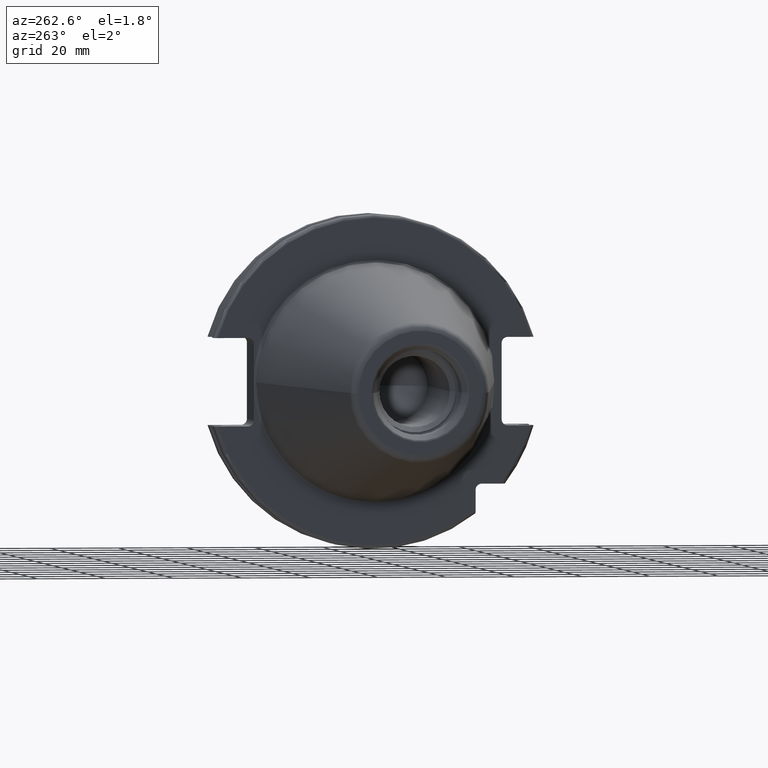
[diagram: clean part render]
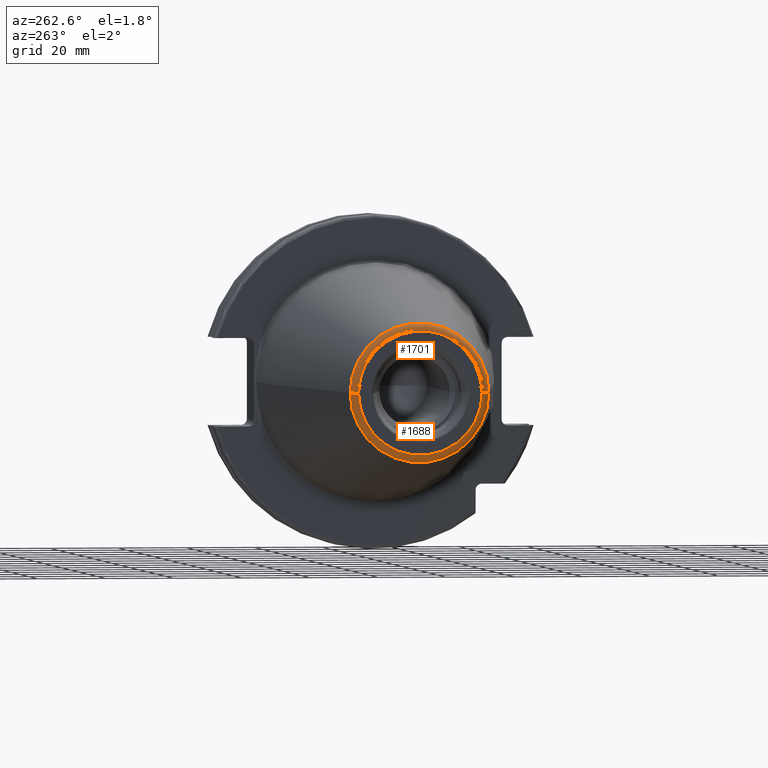
[diagram: same view with one multi-face feature highlighted, each face labeled with its STEP entity id]
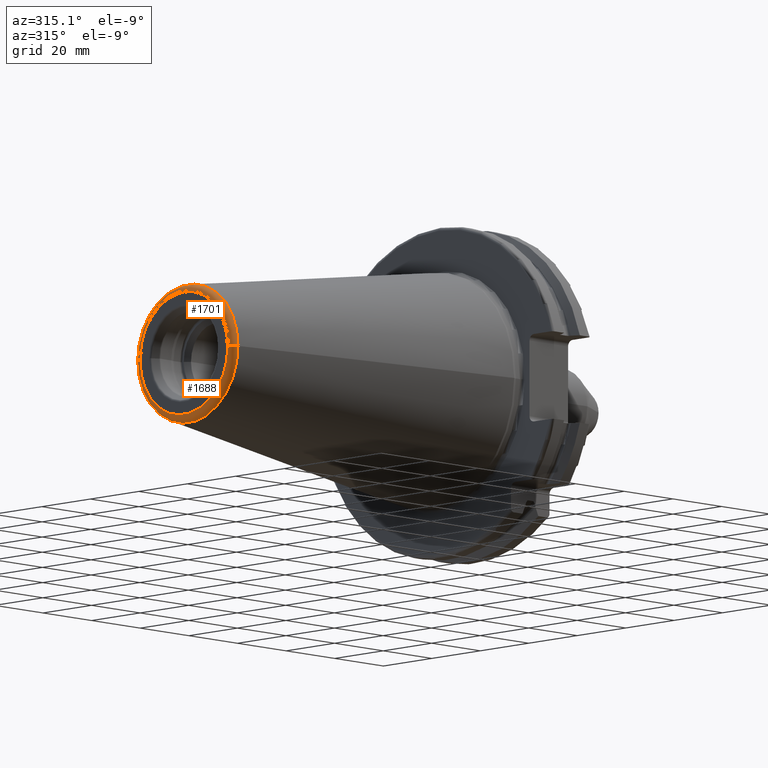
[diagram: same view with one multi-face feature highlighted, each face labeled with its STEP entity id]
A machine part, auxiliary view. The highlighted faces form ONE feature: a constant-radius fillet chain: 2 tangent blend faces with common blend radius 2.25 mm. The faces share edges in the B-rep.
A second angle (auxiliary view) of the same feature is appended — it is thin or edge-on in the first view.
Their STEP definitions:
[1] entity #1688 (Torus):
#2=CARTESIAN_POINT('',(-1.016E2,0.E0,0.E0));
#3=DIRECTION('',(-1.E0,0.E0,0.E0));
#4=DIRECTION('',(0.E0,1.E0,0.E0));
#5=AXIS2_PLACEMENT_3D('',#2,#3,#4);
#22=CARTESIAN_POINT('',(-9.935E1,1.816144700117E1,0.E0));
#23=DIRECTION('',(0.E0,0.E0,1.E0));
#24=DIRECTION('',(-1.443186691705E-1,9.895312636440E-1,0.E0));
#25=AXIS2_PLACEMENT_3D('',#22,#23,#24);
#27=CARTESIAN_POINT('',(-9.935E1,-1.816144700117E1,0.E0));
#28=DIRECTION('',(0.E0,0.E0,-1.E0));
#29=DIRECTION('',(-1.443186691705E-1,-9.895312636440E-1,0.E0));
#30=AXIS2_PLACEMENT_3D('',#27,#28,#29);
#32=CARTESIAN_POINT('',(-9.967471700563E1,0.E0,0.E0));
#33=DIRECTION('',(-1.E0,0.E0,0.E0));
#34=DIRECTION('',(0.E0,1.E0,0.E0));
#35=AXIS2_PLACEMENT_3D('',#32,#33,#34);
#1384=CARTESIAN_POINT('',(-9.967471700563E1,2.038789234437E1,0.E0));
#1385=CARTESIAN_POINT('',(-1.016E2,1.816144700117E1,0.E0));
#1386=VERTEX_POINT('',#1384);
#1387=VERTEX_POINT('',#1385);
#1388=CARTESIAN_POINT('',(-9.967471700563E1,-2.038789234437E1,0.E0));
#1389=CARTESIAN_POINT('',(-1.016E2,-1.816144700117E1,0.E0));
#1390=VERTEX_POINT('',#1388);
#1391=VERTEX_POINT('',#1389);
#1674=CARTESIAN_POINT('',(-9.935E1,0.E0,0.E0));
#1675=DIRECTION('',(1.E0,0.E0,0.E0));
#1676=DIRECTION('',(0.E0,-1.E0,0.E0));
#1677=AXIS2_PLACEMENT_3D('',#1674,#1675,#1676);
#1678=TOROIDAL_SURFACE('',#1677,1.816144700117E1,2.25E0);
#1680=ORIENTED_EDGE('',*,*,#1679,.T.);
#1681=ORIENTED_EDGE('',*,*,#1661,.T.);
#1683=ORIENTED_EDGE('',*,*,#1682,.F.);
#1685=ORIENTED_EDGE('',*,*,#1684,.F.);
#1686=EDGE_LOOP('',(#1680,#1681,#1683,#1685));
#1687=FACE_OUTER_BOUND('',#1686,.F.);
#1688=ADVANCED_FACE('',(#1687),#1678,.T.);
#6=CIRCLE('',#5,1.816144700117E1);
#26=CIRCLE('',#25,2.25E0);
#31=CIRCLE('',#30,2.25E0);
#36=CIRCLE('',#35,2.038789234437E1);
#1661=EDGE_CURVE('',#1387,#1391,#6,.T.);
#1679=EDGE_CURVE('',#1386,#1387,#26,.T.);
#1682=EDGE_CURVE('',#1390,#1391,#31,.T.);
#1684=EDGE_CURVE('',#1386,#1390,#36,.T.);
[2] entity #1701 (Torus):
#7=CARTESIAN_POINT('',(-1.016E2,0.E0,0.E0));
#8=DIRECTION('',(1.E0,0.E0,0.E0));
#9=DIRECTION('',(0.E0,1.E0,0.E0));
#10=AXIS2_PLACEMENT_3D('',#7,#8,#9);
#22=CARTESIAN_POINT('',(-9.935E1,1.816144700117E1,0.E0));
#23=DIRECTION('',(0.E0,0.E0,1.E0));
#24=DIRECTION('',(-1.443186691705E-1,9.895312636440E-1,0.E0));
#25=AXIS2_PLACEMENT_3D('',#22,#23,#24);
#27=CARTESIAN_POINT('',(-9.935E1,-1.816144700117E1,0.E0));
#28=DIRECTION('',(0.E0,0.E0,-1.E0));
#29=DIRECTION('',(-1.443186691705E-1,-9.895312636440E-1,0.E0));
#30=AXIS2_PLACEMENT_3D('',#27,#28,#29);
#37=CARTESIAN_POINT('',(-9.967471700563E1,0.E0,0.E0));
#38=DIRECTION('',(1.E0,0.E0,0.E0));
#39=DIRECTION('',(0.E0,1.E0,0.E0));
#40=AXIS2_PLACEMENT_3D('',#37,#38,#39);
#1384=CARTESIAN_POINT('',(-9.967471700563E1,2.038789234437E1,0.E0));
#1385=CARTESIAN_POINT('',(-1.016E2,1.816144700117E1,0.E0));
#1386=VERTEX_POINT('',#1384);
#1387=VERTEX_POINT('',#1385);
#1388=CARTESIAN_POINT('',(-9.967471700563E1,-2.038789234437E1,0.E0));
#1389=CARTESIAN_POINT('',(-1.016E2,-1.816144700117E1,0.E0));
#1390=VERTEX_POINT('',#1388);
#1391=VERTEX_POINT('',#1389);
#1689=CARTESIAN_POINT('',(-9.935E1,0.E0,0.E0));
#1690=DIRECTION('',(1.E0,0.E0,0.E0));
#1691=DIRECTION('',(0.E0,-1.E0,0.E0));
#1692=AXIS2_PLACEMENT_3D('',#1689,#1690,#1691);
#1693=TOROIDAL_SURFACE('',#1692,1.816144700117E1,2.25E0);
#1694=ORIENTED_EDGE('',*,*,#1679,.F.);
#1696=ORIENTED_EDGE('',*,*,#1695,.T.);
#1697=ORIENTED_EDGE('',*,*,#1682,.T.);
#1698=ORIENTED_EDGE('',*,*,#1663,.F.);
#1699=EDGE_LOOP('',(#1694,#1696,#1697,#1698));
#1700=FACE_OUTER_BOUND('',#1699,.F.);
#1701=ADVANCED_FACE('',(#1700),#1693,.T.);
#11=CIRCLE('',#10,1.816144700117E1);
#26=CIRCLE('',#25,2.25E0);
#31=CIRCLE('',#30,2.25E0);
#41=CIRCLE('',#40,2.038789234437E1);
#1663=EDGE_CURVE('',#1387,#1391,#11,.T.);
#1679=EDGE_CURVE('',#1386,#1387,#26,.T.);
#1682=EDGE_CURVE('',#1390,#1391,#31,.T.);
#1695=EDGE_CURVE('',#1386,#1390,#41,.T.);